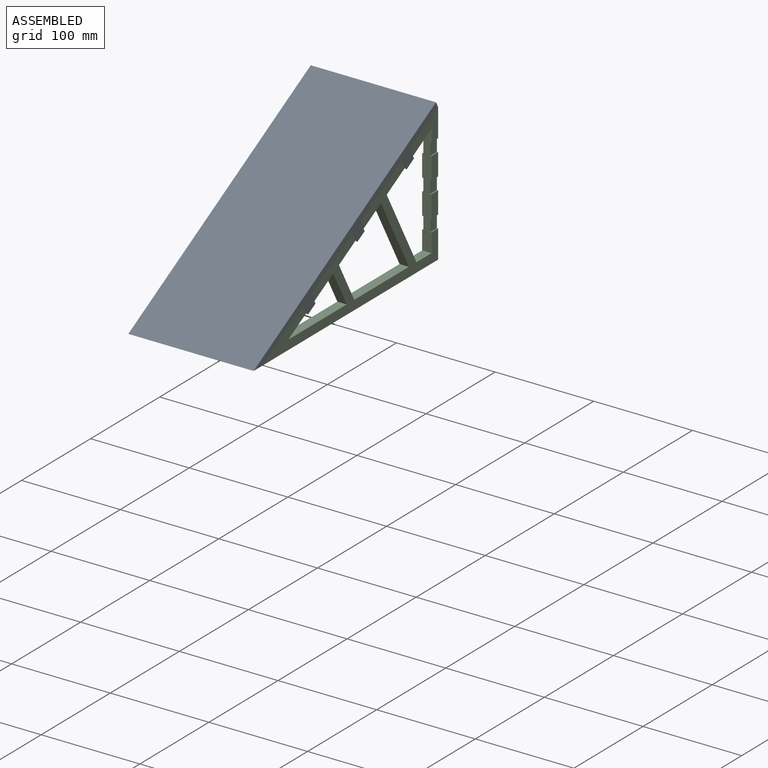
[diagram: assembled view]
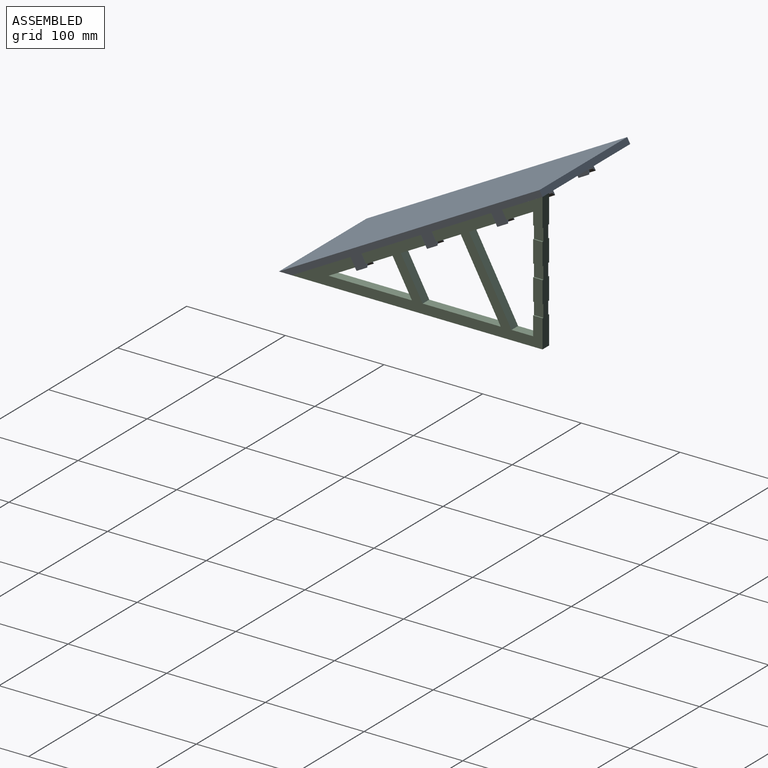
[diagram: assembled view, second angle]
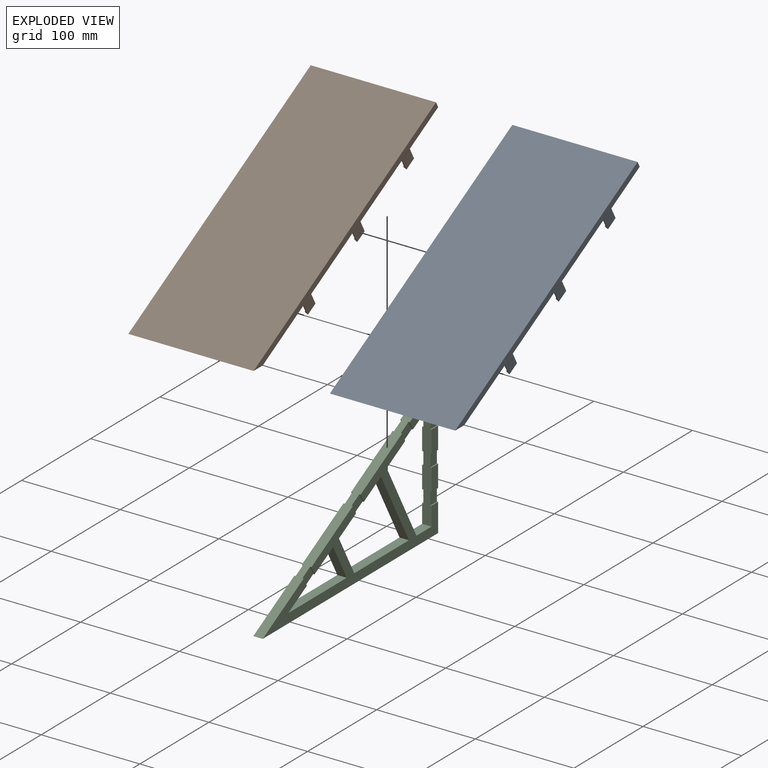
[diagram: exploded view]
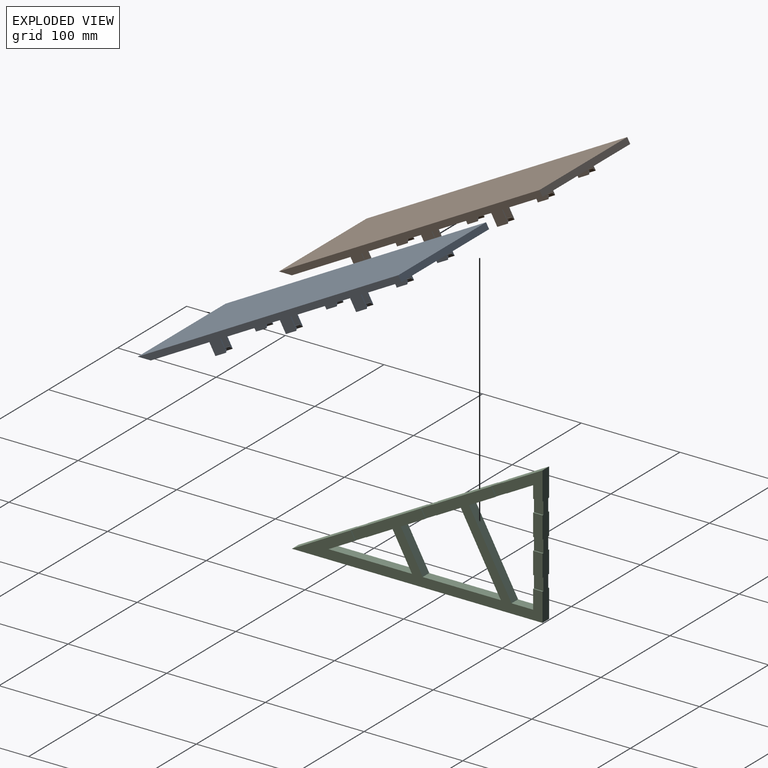
[diagram: exploded view, second angle]
ASSEMBLY  parts=3 mates=3
PART A: 108 faces, bbox 127x267.2x145.3 mm
  f0: plane 15.62x14.57mm, normal (1,0,0), area 121.7mm2, adj f12,f67,f72,f107
  f1: plane 15.4x14.44mm, normal (1,0,0), area 119.2mm2, adj f13,f67,f105,f106
  f2: plane 15.62x14.57mm, normal (1,0,0), area 121.7mm2, adj f14,f67,f74,f104
  f3: plane 15.62x14.57mm, normal (-1,0,0), area 121.7mm2, adj f15,f67,f73,f103
  f4: plane 15.4x14.44mm, normal (-1,0,0), area 119.2mm2, adj f16,f67,f101,f102
  f5: plane 15.62x14.57mm, normal (-1,0,0), area 121.7mm2, adj f17,f67,f75,f100
  f6: plane 17.13x17.03mm, normal (1,0,0), area 158.1mm2, adj f18,f67,f73,f103
  f7: plane 17x16.8mm, normal (1,0,0), area 154.8mm2, adj f19,f67,f101,f102
  f8: plane 17.13x17.03mm, normal (1,0,0), area 158.1mm2, adj f20,f67,f75,f100
  f9: plane 12.31x8.56mm, normal (0.75,0.32,-0.57), area 48.2mm2, adj f12,f71,f72,f107
  f10: plane 12.09x8.44mm, normal (0.75,0.32,-0.57), area 47.2mm2, adj f13,f71,f105,f106
  f11: plane 12.31x8.56mm, normal (0.75,0.32,-0.57), area 48.2mm2, adj f14,f71,f74,f104
  f12: plane 10.91x6mm, normal (0,-0.48,0.88), area 15.8mm2, adj f0,f9,f72,f107
  f13: plane 10.68x5.88mm, normal (0,-0.48,0.88), area 15.5mm2, adj f1,f10,f105,f106
  f14: plane 10.91x6mm, normal (0,-0.48,0.88), area 15.8mm2, adj f2,f11,f74,f104
  f15: plane 10.91x6mm, normal (0,-0.48,0.88), area 15.8mm2, adj f3,f18,f73,f103
  f16: plane 10.68x5.88mm, normal (0,-0.48,0.88), area 15.5mm2, adj f4,f19,f101,f102
  f17: plane 10.91x6mm, normal (0,-0.48,0.88), area 15.8mm2, adj f5,f20,f75,f100
  f18: plane 12.31x8.56mm, normal (-0.75,0.32,-0.57), area 48.2mm2, adj f6,f15,f73,f103
  f19: plane 12.09x8.44mm, normal (-0.75,0.32,-0.57), area 47.2mm2, adj f7,f16,f101,f102
  f20: plane 12.31x8.56mm, normal (-0.75,0.32,-0.57), area 48.2mm2, adj f8,f17,f75,f100
  f21: plane 17.13x17.03mm, normal (-1,0,0), area 158.1mm2, adj f33,f67,f76,f99
  f22: plane 17x16.8mm, normal (-1,0,0), area 154.8mm2, adj f34,f67,f97,f98
  f23: plane 17.13x17.03mm, normal (-1,0,0), area 158.1mm2, adj f35,f67,f78,f96
  f24: plane 15.62x14.57mm, normal (1,0,0), area 121.7mm2, adj f36,f67,f76,f99
  f25: plane 15.4x14.44mm, normal (1,0,0), area 119.2mm2, adj f37,f67,f97,f98
  f26: plane 15.62x14.57mm, normal (1,0,0), area 121.7mm2, adj f38,f67,f78,f96
  f27: plane 15.62x14.57mm, normal (-1,0,0), area 121.7mm2, adj f39,f67,f77,f95
  f28: plane 15.4x14.44mm, normal (-1,0,0), area 119.2mm2, adj f40,f67,f93,f94
  f29: plane 15.62x14.57mm, normal (-1,0,0), area 121.7mm2, adj f41,f67,f79,f92
  f30: plane 17.13x17.03mm, normal (1,0,0), area 158.1mm2, adj f42,f67,f77,f95
  f31: plane 17x16.8mm, normal (1,0,0), area 154.8mm2, adj f43,f67,f93,f94
  f32: plane 17.13x17.03mm, normal (1,0,0), area 158.1mm2, adj f44,f67,f79,f92
  f33: plane 12.31x8.56mm, normal (0.75,0.32,-0.57), area 48.2mm2, adj f21,f36,f76,f99
  f34: plane 12.09x8.44mm, normal (0.75,0.32,-0.57), area 47.2mm2, adj f22,f37,f97,f98
  f35: plane 12.31x8.56mm, normal (0.75,0.32,-0.57), area 48.2mm2, adj f23,f38,f78,f96
  f36: plane 10.91x6mm, normal (0,-0.48,0.88), area 15.8mm2, adj f24,f33,f76,f99
  f37: plane 10.68x5.88mm, normal (0,-0.48,0.88), area 15.5mm2, adj f25,f34,f97,f98
  f38: plane 10.91x6mm, normal (0,-0.48,0.88), area 15.8mm2, adj f26,f35,f78,f96
  f39: plane 10.91x6mm, normal (0,-0.48,0.88), area 15.8mm2, adj f27,f42,f77,f95
  f40: plane 10.68x5.88mm, normal (0,-0.48,0.88), area 15.5mm2, adj f28,f43,f93,f94
  f41: plane 10.91x6mm, normal (0,-0.48,0.88), area 15.8mm2, adj f29,f44,f79,f92
  f42: plane 12.31x8.56mm, normal (-0.75,0.32,-0.57), area 48.2mm2, adj f30,f39,f77,f95
  f43: plane 12.09x8.44mm, normal (-0.75,0.32,-0.57), area 47.2mm2, adj f31,f40,f93,f94
  f44: plane 12.31x8.56mm, normal (-0.75,0.32,-0.57), area 48.2mm2, adj f32,f41,f79,f92
  f45: plane 17.13x17.03mm, normal (-1,0,0), area 158.1mm2, adj f54,f67,f80,f91
  f46: plane 17x16.8mm, normal (-1,0,0), area 154.8mm2, adj f55,f67,f89,f90
  f47: plane 17.13x17.03mm, normal (-1,0,0), area 158.1mm2, adj f56,f67,f82,f88
  f48: plane 15.62x14.57mm, normal (1,0,0), area 121.7mm2, adj f57,f67,f80,f91
  f49: plane 15.4x14.44mm, normal (1,0,0), area 119.2mm2, adj f58,f67,f89,f90
  f50: plane 15.62x14.57mm, normal (1,0,0), area 121.7mm2, adj f59,f67,f82,f88
  f51: plane 15.62x14.57mm, normal (-1,0,0), area 121.7mm2, adj f60,f67,f81,f87
  f52: plane 15.4x14.44mm, normal (-1,0,0), area 119.2mm2, adj f61,f67,f85,f86
  f53: plane 15.62x14.57mm, normal (-1,0,0), area 121.7mm2, adj f62,f67,f83,f84
  f54: plane 12.31x8.56mm, normal (0.75,0.32,-0.57), area 48.2mm2, adj f45,f57,f80,f91
  f55: plane 12.09x8.44mm, normal (0.75,0.32,-0.57), area 47.2mm2, adj f46,f58,f89,f90
  f56: plane 12.31x8.56mm, normal (0.75,0.32,-0.57), area 48.2mm2, adj f47,f59,f82,f88
  f57: plane 10.91x6mm, normal (0,-0.48,0.88), area 15.8mm2, adj f48,f54,f80,f91
  f58: plane 10.68x5.88mm, normal (0,-0.48,0.88), area 15.5mm2, adj f49,f55,f89,f90
  f59: plane 10.91x6mm, normal (0,-0.48,0.88), area 15.8mm2, adj f50,f56,f82,f88
  f60: plane 10.91x6mm, normal (0,-0.48,0.88), area 15.8mm2, adj f51,f63,f81,f87
  f61: plane 10.68x5.88mm, normal (0,-0.48,0.88), area 15.5mm2, adj f52,f64,f85,f86
  f62: plane 10.91x6mm, normal (0,-0.48,0.88), area 15.8mm2, adj f53,f65,f83,f84
  f63: plane 12.31x8.56mm, normal (-0.75,0.32,-0.57), area 48.2mm2, adj f60,f70,f81,f87
  f64: plane 12.09x8.44mm, normal (-0.75,0.32,-0.57), area 47.2mm2, adj f61,f70,f85,f86
  f65: plane 12.31x8.56mm, normal (-0.75,0.32,-0.57), area 48.2mm2, adj f62,f70,f83,f84
  f66: plane 127x13.18mm, normal (0,0,-1), area 1673.4mm2, adj f67,f69,f70,f71
  f67: plane 254.01x139.7mm, normal (0,0.48,-0.88), area 36533.5mm2, adj f0,f1,f2,f3,f4,f5,f6,f7
  f68: plane 127x5.56mm, normal (0,0.88,0.48), area 806.4mm2, adj f67,f69,f70,f71
  f69: plane 264.12x145.27mm, normal (0,-0.48,0.88), area 38282.3mm2, adj f66,f68,f70,f71
  f70: plane 267.18x145.27mm, normal (1,0,0), area 2348.4mm2, adj f63,f64,f65,f66,f67,f68,f69,f81
  f71: plane 267.18x145.27mm, normal (-1,0,0), area 2348.4mm2, adj f9,f10,f11,f66,f67,f68,f69,f72
  f72: plane 11.13x6.12mm, normal (0,-0.88,-0.48), area 16.1mm2, adj f0,f9,f12,f67,f71
  f73: plane 11.13x6.12mm, normal (0,-0.88,-0.48), area 16.1mm2, adj f3,f6,f15,f18,f67
  f74: plane 11.13x6.12mm, normal (0,0.88,0.48), area 16.1mm2, adj f2,f11,f14,f67,f71
  f75: plane 11.13x6.12mm, normal (0,0.88,0.48), area 16.1mm2, adj f5,f8,f17,f20,f67
  f76: plane 11.13x6.12mm, normal (0,-0.88,-0.48), area 16.1mm2, adj f21,f24,f33,f36,f67
  f77: plane 11.13x6.12mm, normal (0,-0.88,-0.48), area 16.1mm2, adj f27,f30,f39,f42,f67
  f78: plane 11.13x6.12mm, normal (0,0.88,0.48), area 16.1mm2, adj f23,f26,f35,f38,f67
  f79: plane 11.13x6.12mm, normal (0,0.88,0.48), area 16.1mm2, adj f29,f32,f41,f44,f67
  f80: plane 11.13x6.12mm, normal (0,-0.88,-0.48), area 16.1mm2, adj f45,f48,f54,f57,f67
  f81: plane 11.13x6.12mm, normal (0,-0.88,-0.48), area 16.1mm2, adj f51,f60,f63,f67,f70
  f82: plane 11.13x6.12mm, normal (0,0.88,0.48), area 16.1mm2, adj f47,f50,f56,f59,f67
  f83: plane 11.13x6.12mm, normal (0,0.88,0.48), area 16.1mm2, adj f53,f62,f65,f67,f70
  f84: plane 11.13x6.12mm, normal (0,-0.88,-0.48), area 16.1mm2, adj f53,f62,f65,f67,f70
  f85: plane 11.13x6.12mm, normal (0,0.88,0.48), area 16.1mm2, adj f52,f61,f64,f67,f70
  f86: plane 11.13x6.12mm, normal (0,-0.88,-0.48), area 16.1mm2, adj f52,f61,f64,f67,f70
  f87: plane 11.13x6.12mm, normal (0,0.88,0.48), area 16.1mm2, adj f51,f60,f63,f67,f70
  f88: plane 11.13x6.12mm, normal (0,-0.88,-0.48), area 16.1mm2, adj f47,f50,f56,f59,f67
  f89: plane 11.13x6.12mm, normal (0,0.88,0.48), area 16.1mm2, adj f46,f49,f55,f58,f67
  f90: plane 11.13x6.12mm, normal (0,-0.88,-0.48), area 16.1mm2, adj f46,f49,f55,f58,f67
  f91: plane 11.13x6.12mm, normal (0,0.88,0.48), area 16.1mm2, adj f45,f48,f54,f57,f67
  f92: plane 11.13x6.12mm, normal (0,-0.88,-0.48), area 16.1mm2, adj f29,f32,f41,f44,f67
  f93: plane 11.13x6.12mm, normal (0,0.88,0.48), area 16.1mm2, adj f28,f31,f40,f43,f67
  f94: plane 11.13x6.12mm, normal (0,-0.88,-0.48), area 16.1mm2, adj f28,f31,f40,f43,f67
  f95: plane 11.13x6.12mm, normal (0,0.88,0.48), area 16.1mm2, adj f27,f30,f39,f42,f67
  f96: plane 11.13x6.12mm, normal (0,-0.88,-0.48), area 16.1mm2, adj f23,f26,f35,f38,f67
  f97: plane 11.13x6.12mm, normal (0,0.88,0.48), area 16.1mm2, adj f22,f25,f34,f37,f67
  f98: plane 11.13x6.12mm, normal (0,-0.88,-0.48), area 16.1mm2, adj f22,f25,f34,f37,f67
  f99: plane 11.13x6.12mm, normal (0,0.88,0.48), area 16.1mm2, adj f21,f24,f33,f36,f67
  f100: plane 11.13x6.12mm, normal (0,-0.88,-0.48), area 16.1mm2, adj f5,f8,f17,f20,f67
  f101: plane 11.13x6.12mm, normal (0,0.88,0.48), area 16.1mm2, adj f4,f7,f16,f19,f67
  f102: plane 11.13x6.12mm, normal (0,-0.88,-0.48), area 16.1mm2, adj f4,f7,f16,f19,f67
  f103: plane 11.13x6.12mm, normal (0,0.88,0.48), area 16.1mm2, adj f3,f6,f15,f18,f67
  f104: plane 11.13x6.12mm, normal (0,-0.88,-0.48), area 16.1mm2, adj f2,f11,f14,f67,f71
  f105: plane 11.13x6.12mm, normal (0,0.88,0.48), area 16.1mm2, adj f1,f10,f13,f67,f71
  f106: plane 11.13x6.12mm, normal (0,-0.88,-0.48), area 16.1mm2, adj f1,f10,f13,f67,f71
  f107: plane 11.13x6.12mm, normal (0,0.88,0.48), area 16.1mm2, adj f0,f9,f12,f67,f71
PART B: same geometry as A
PART C: 58 faces, bbox 9.5x254x139.7 mm
  f0: plane 41.03x30.91mm, normal (1,0,0), area 564.8mm2, adj f10,f13,f14,f15,f22,f55
  f1: plane 22.23x9.53mm, normal (1,0,0), area 211.7mm2, adj f14,f15,f52,f56
  f2: plane 22.23x9.53mm, normal (1,0,0), area 211.7mm2, adj f14,f15,f43,f53
  f3: plane 22.23x9.53mm, normal (-1,0,0), area 211.7mm2, adj f14,f15,f42,f50
  f4: plane 22.23x9.53mm, normal (-1,0,0), area 211.7mm2, adj f14,f15,f47,f51
  f5: plane 41.03x30.91mm, normal (-1,0,0), area 564.8mm2, adj f10,f13,f14,f15,f25,f41
  f6: plane 60.79x33.43mm, normal (0,0.48,-0.88), area 628.5mm2, adj f16,f17,f19,f20,f31,f32,f33,f34
  f7: plane 21.87x9.53mm, normal (0,0,1), area 208.3mm2, adj f14,f16,f17,f21
  f8: plane 64.95x35.72mm, normal (0,0.48,-0.88), area 673.8mm2, adj f12,f16,f17,f18,f28,f29,f30,f37
  f9: plane 79.18x9.53mm, normal (0,0,1), area 754.2mm2, adj f16,f17,f19,f20
  f10: plane 254x139.7mm, normal (0,-0.48,0.88), area 2664.4mm2, adj f0,f5,f11,f15,f16,f17,f22,f23
  f11: plane 254x9.53mm, normal (0,0,-1), area 2419.4mm2, adj f10,f15,f16,f17
  f12: plane 84.6x9.53mm, normal (0,0,1), area 805.8mm2, adj f8,f16,f17,f18
  f13: plane 64.96x35.73mm, normal (0,0.48,-0.88), area 673.9mm2, adj f0,f5,f14,f16,f17,f21,f22,f23
  f14: plane 114.07x9.53mm, normal (0,-1,0), area 989.7mm2, adj f0,f1,f2,f3,f4,f5,f7,f13
  f15: plane 139.7x9.53mm, normal (0,1,0), area 1233.9mm2, adj f0,f1,f2,f3,f4,f5,f10,f11
  f16: plane 254x111.01mm, normal (1,0,0), area 5439.7mm2, adj f6,f7,f8,f9,f10,f11,f12,f13
  f17: plane 254x111.01mm, normal (-1,0,0), area 5439.7mm2, adj f6,f7,f8,f9,f10,f11,f12,f13
  f18: plane 35.72x19.65mm, normal (0,-0.88,-0.48), area 388.3mm2, adj f8,f12,f16,f17
  f19: plane 40.32x22.17mm, normal (0,0.88,0.48), area 438.2mm2, adj f6,f9,f16,f17
  f20: plane 73.75x40.56mm, normal (0,-0.88,-0.48), area 801.7mm2, adj f6,f9,f16,f17
  f21: plane 78.34x43.09mm, normal (0,0.88,0.48), area 851.6mm2, adj f7,f13,f16,f17
  f22: plane 8.35x4.59mm, normal (0,-0.88,-0.48), area 12.1mm2, adj f0,f10,f13,f23
  f23: plane 15.72x14.47mm, normal (1,0,0), area 121mm2, adj f10,f13,f22,f24
  f24: plane 8.35x4.59mm, normal (0,0.88,0.48), area 12.1mm2, adj f10,f13,f16,f23
  f25: plane 8.35x4.59mm, normal (0,-0.88,-0.48), area 12.1mm2, adj f5,f10,f13,f27
  f26: plane 8.35x4.59mm, normal (0,0.88,0.48), area 12.1mm2, adj f10,f13,f17,f27
  f27: plane 15.72x14.47mm, normal (-1,0,0), area 121mm2, adj f10,f13,f25,f26
  f28: plane 8.35x4.59mm, normal (0,-0.88,-0.48), area 12.1mm2, adj f8,f10,f17,f30
  f29: plane 8.35x4.59mm, normal (0,0.88,0.48), area 12.1mm2, adj f8,f10,f17,f30
  f30: plane 15.72x14.47mm, normal (-1,0,0), area 121mm2, adj f8,f10,f28,f29
  f31: plane 8.35x4.59mm, normal (0,-0.88,-0.48), area 12.1mm2, adj f6,f10,f16,f32
  f32: plane 15.72x14.47mm, normal (1,0,0), area 121mm2, adj f6,f10,f31,f33
  f33: plane 8.35x4.59mm, normal (0,0.88,0.48), area 12.1mm2, adj f6,f10,f16,f32
  f34: plane 8.35x4.59mm, normal (0,-0.88,-0.48), area 12.1mm2, adj f6,f10,f17,f36
  f35: plane 8.35x4.59mm, normal (0,0.88,0.48), area 12.1mm2, adj f6,f10,f17,f36
  f36: plane 15.72x14.47mm, normal (-1,0,0), area 121mm2, adj f6,f10,f34,f35
  f37: plane 8.35x4.59mm, normal (0,-0.88,-0.48), area 12.1mm2, adj f8,f10,f16,f38
  f38: plane 15.72x14.47mm, normal (1,0,0), area 121mm2, adj f8,f10,f37,f39
  f39: plane 8.35x4.59mm, normal (0,0.88,0.48), area 12.1mm2, adj f8,f10,f16,f38
  f40: plane 12.7x9.53mm, normal (-1,0,0), area 121mm2, adj f14,f15,f41,f42
  f41: plane 9.53x1.27mm, normal (0,0,-1), area 12.1mm2, adj f5,f14,f15,f40
  f42: plane 9.53x1.27mm, normal (0,0,1), area 12.1mm2, adj f3,f14,f15,f40
  f43: plane 9.53x1.27mm, normal (0,0,-1), area 12.1mm2, adj f2,f14,f15,f45
  f44: plane 9.53x1.27mm, normal (0,0,1), area 12.1mm2, adj f14,f15,f16,f45
  f45: plane 12.7x9.53mm, normal (1,0,0), area 121mm2, adj f14,f15,f43,f44
  f46: plane 12.7x9.53mm, normal (-1,0,0), area 121mm2, adj f14,f15,f47,f48
  f47: plane 9.53x1.27mm, normal (0,0,-1), area 12.1mm2, adj f4,f14,f15,f46
  f48: plane 9.53x1.27mm, normal (0,0,1), area 12.1mm2, adj f14,f15,f17,f46
  f49: plane 12.7x9.53mm, normal (-1,0,0), area 121mm2, adj f14,f15,f50,f51
  f50: plane 9.53x1.27mm, normal (0,0,-1), area 12.1mm2, adj f3,f14,f15,f49
  f51: plane 9.53x1.27mm, normal (0,0,1), area 12.1mm2, adj f4,f14,f15,f49
  f52: plane 9.53x1.27mm, normal (0,0,-1), area 12.1mm2, adj f1,f14,f15,f54
  f53: plane 9.53x1.27mm, normal (0,0,1), area 12.1mm2, adj f2,f14,f15,f54
  f54: plane 12.7x9.53mm, normal (1,0,0), area 121mm2, adj f14,f15,f52,f53
  f55: plane 9.53x1.27mm, normal (0,0,-1), area 12.1mm2, adj f0,f14,f15,f57
  f56: plane 9.53x1.27mm, normal (0,0,1), area 12.1mm2, adj f1,f14,f15,f57
  f57: plane 12.7x9.53mm, normal (1,0,0), area 121mm2, adj f14,f15,f55,f56
PLACE A t=(-14.7,-62.17,40.12)mm
PLACE B t=(-14.7,-62.17,40.12)mm fixed
PLACE C t=(44.04,-49,40.12)mm
MATE planar B.f66 <-> C.f11  axis (0,0,-1) through (48.8,-55.59,40.12)mm
MATE planar C.f10 <-> B.f67  axis (0,-0.48,0.88) through (39.28,-19.3,56.45)mm
MATE planar C.f0 <-> B.f70  axis (1,0,0) through (48.8,189.4,162.56)mm
